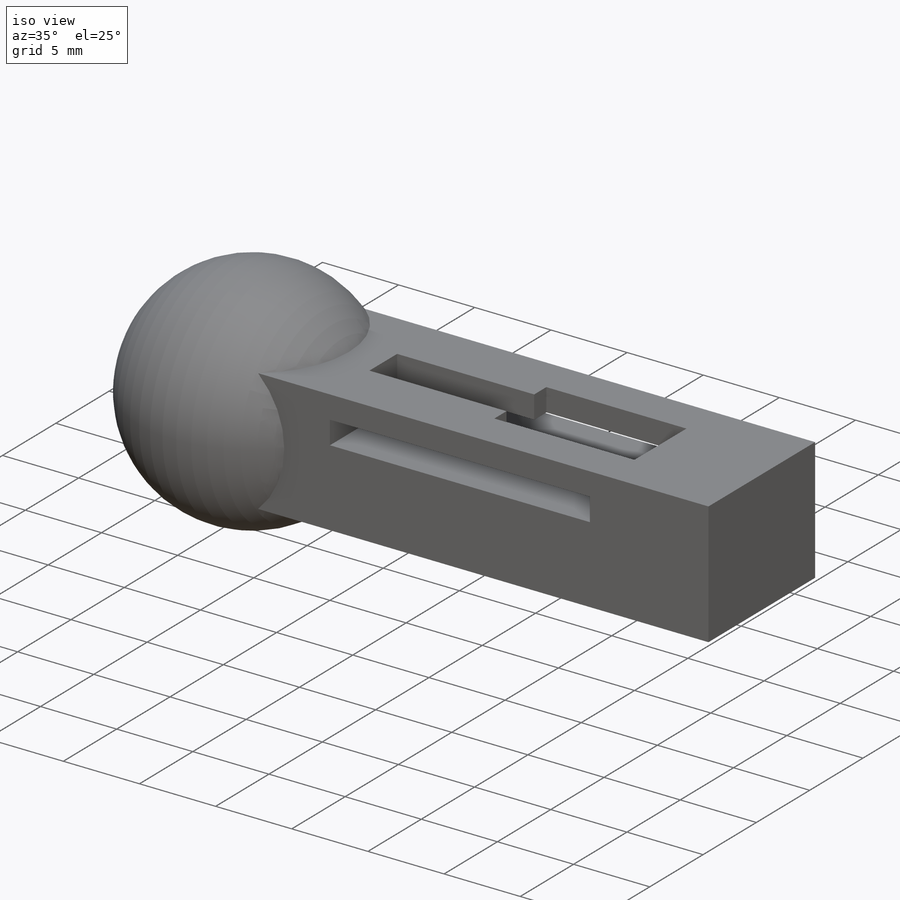
[diagram: iso view]
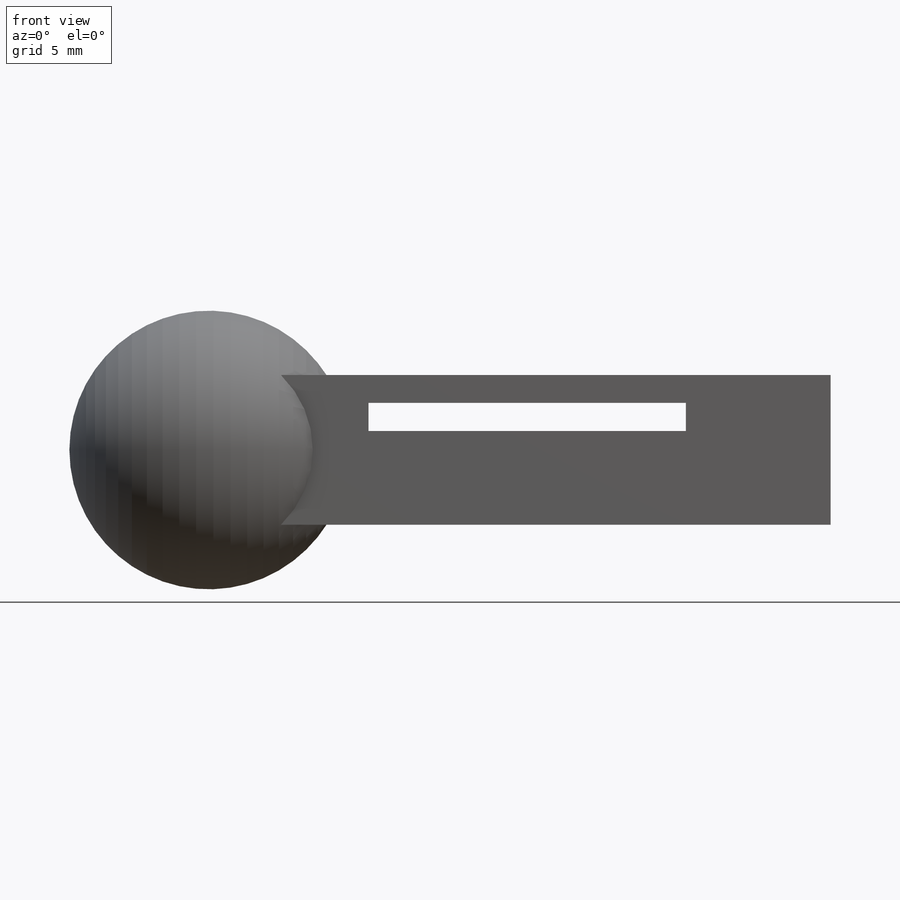
[diagram: front view]
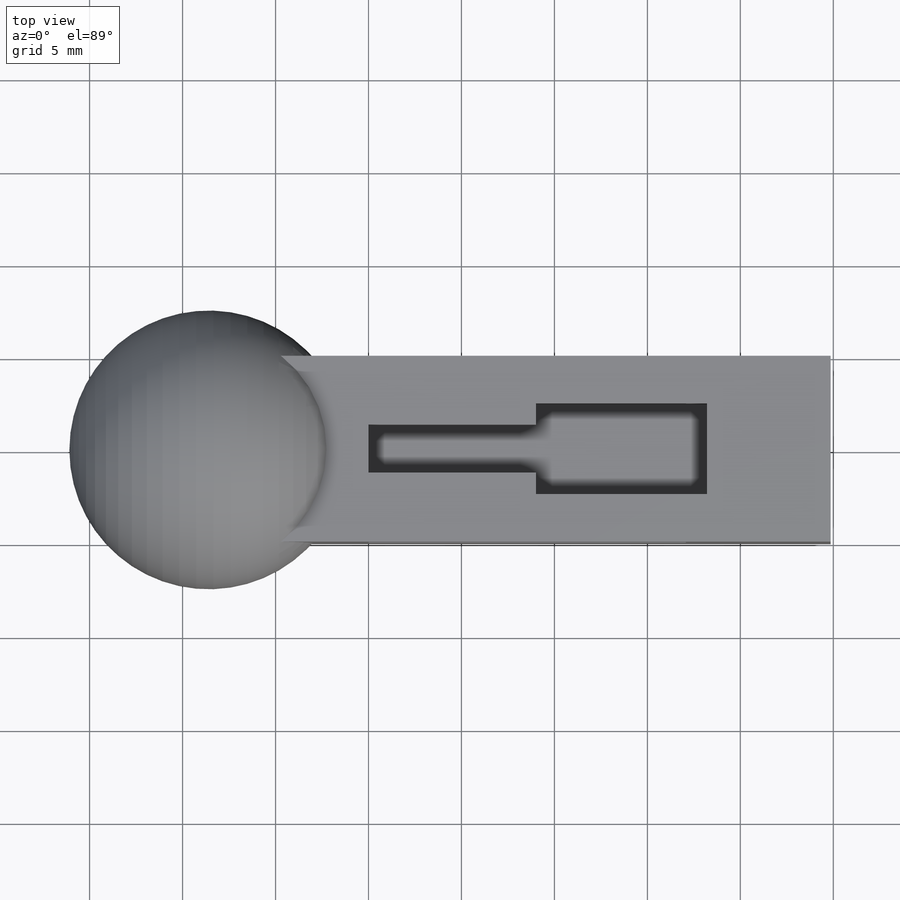
[diagram: top view]
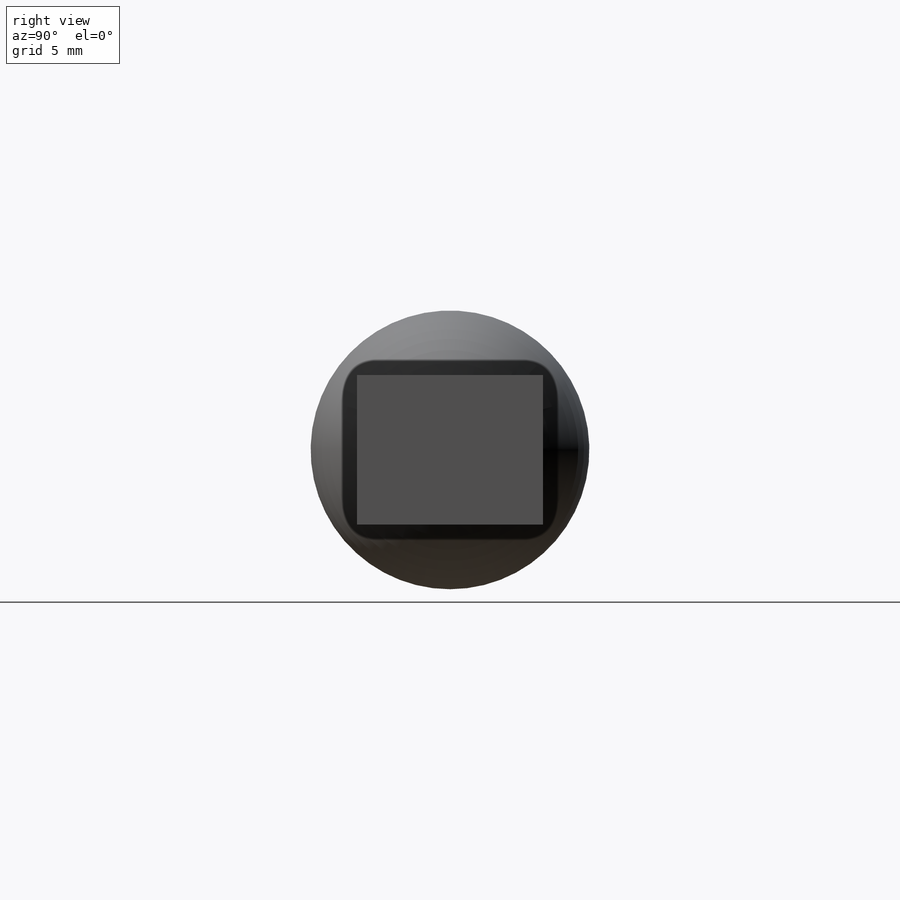
[diagram: right view]
SOLIDWORKS PART (.sldprt)
format: sldprt  version: not decoded by parser v0  size: 261,120 bytes
history: native  units: mm
features: sketch x6, plane x3, extrude x3, material x1, cut_extrude x1, revolve x1 (+9 scaffold rows collapsed)
feature tree (24):
  scaffold x9  (default folders/planes/origin — collapsed)
  material  "Material <sin especificar>"
  plane  "Alzado"
  plane  "Planta"
  plane  "Vista lateral"
  sketch  "Croquis2"  dims[D1=2.0mm D2=1.5mm D3=~4.555393mm]
  extrude  "Saliente-Extruir1"  Depth=10mm
  sketch  "Croquis3"  dims[D1=18.2mm D2=9.0mm D3=2.6mm]
  cut_extrude  "Cortar-Extruir1"  [1 undecoded]
  sketch  "Croquis4"  dims[D1=0.0mm]
  extrude  "Saliente-Extruir2"  Depth=3.04mm
  sketch  "Croquis5"
  sketch  "Croquis6"  dims[D1=15.0mm]
  revolve  "Revolución1"  Angle=360deg
  sketch  "Croquis7"  dims[D1=0.0mm]
  extrude  "Saliente-Extruir3"  Depth=3.04mm
decode coverage: 9 of 11 modeling features carry decoded parameters
note: ~ marks probable driven/reference dimensions
note: 1 parameter value undecoded
note: suppression state not decoded; provenance and decode notes live in map.json
